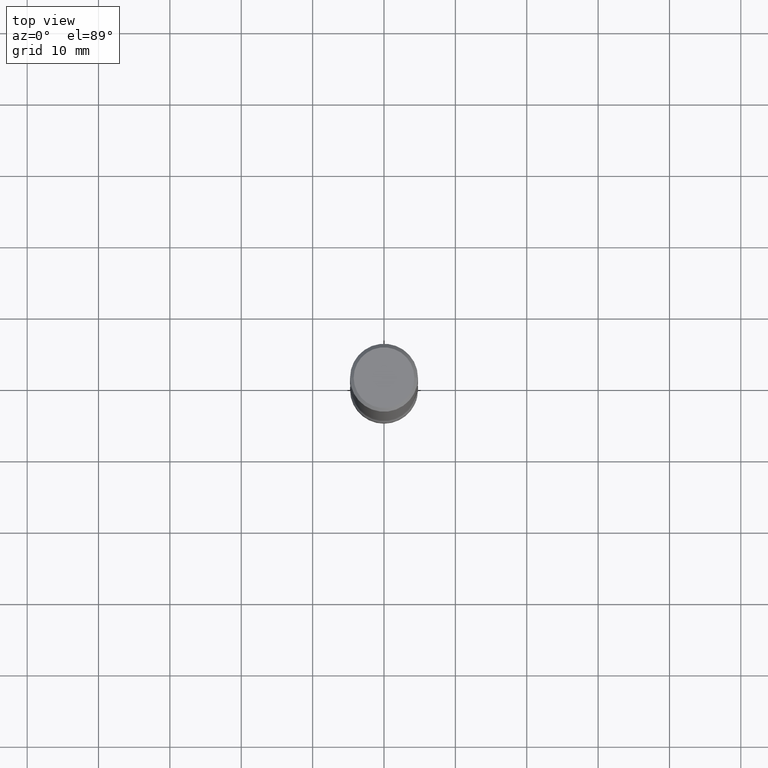
[diagram: clean part render]
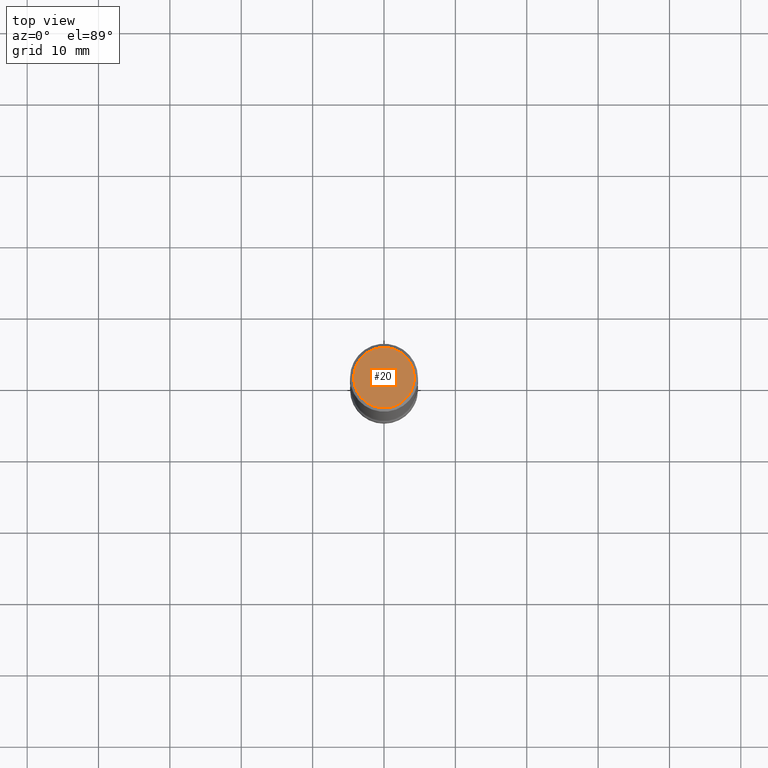
[diagram: same view with one face highlighted and labeled with its STEP entity id]
A machine part, top view. The second image highlights one B-rep face of the part: STEP entity #20.
In plain terms, the highlighted planar face has unit normal (-0, 0, 1).
Its self-contained STEP definition (entity closure, byte-faithful):
#16 = VERTEX_POINT ( 'NONE', #396 ) ;
#20 = ADVANCED_FACE ( 'NONE', ( #140 ), #58, .T. ) ;
#29 = AXIS2_PLACEMENT_3D ( 'NONE', #485, #49, #488 ) ;
#32 = ORIENTED_EDGE ( 'NONE', *, *, #535, .F. ) ;
#49 = DIRECTION ( 'NONE',  ( -2.438088387897960049E-29, 3.491481338843145188E-15, 1.000000000000000000 ) ) ;
#58 = PLANE ( 'NONE',  #29 ) ;
#66 = CARTESIAN_POINT ( 'NONE',  ( 0.1674999999999997047, -1.252653207992876119E-15, 8.469775550109222569E-30 ) ) ;
#79 = CARTESIAN_POINT ( 'NONE',  ( 0.000000000000000000, 0.000000000000000000, 0.000000000000000000 ) ) ;
#134 = VERTEX_POINT ( 'NONE', #66 ) ;
#140 = FACE_OUTER_BOUND ( 'NONE', #221, .T. ) ;
#208 = AXIS2_PLACEMENT_3D ( 'NONE', #364, #489, #541 ) ;
#217 = DIRECTION ( 'NONE',  ( 2.445468806185136597E-29, -3.491481338843145583E-15, -1.000000000000000000 ) ) ;
#221 = EDGE_LOOP ( 'NONE', ( #354, #32 ) ) ;
#239 = EDGE_CURVE ( 'NONE', #16, #134, #448, .T. ) ;
#354 = ORIENTED_EDGE ( 'NONE', *, *, #239, .F. ) ;
#364 = CARTESIAN_POINT ( 'NONE',  ( 0.000000000000000000, 0.000000000000000000, 0.000000000000000000 ) ) ;
#378 = DIRECTION ( 'NONE',  ( -1.000000000000000000, 6.982962677686266711E-15, -4.876176775795936353E-29 ) ) ;
#396 = CARTESIAN_POINT ( 'NONE',  ( -0.1674999999999997047, 1.169646248512447623E-15, -8.167596099458179281E-30 ) ) ;
#414 = AXIS2_PLACEMENT_3D ( 'NONE', #79, #217, #378 ) ;
#448 = CIRCLE ( 'NONE', #414, 0.1674999999999997047 ) ;
#450 = CIRCLE ( 'NONE', #208, 0.1674999999999997047 ) ;
#485 = CARTESIAN_POINT ( 'NONE',  ( 1.169646248512447623E-15, 0.1674999999999997047, -5.826888680111756689E-16 ) ) ;
#488 = DIRECTION ( 'NONE',  ( 1.000000000000000000, -6.982962677686265922E-15, 4.876176775795935793E-29 ) ) ;
#489 = DIRECTION ( 'NONE',  ( 2.445468806185136597E-29, -3.491481338843145583E-15, -1.000000000000000000 ) ) ;
#535 = EDGE_CURVE ( 'NONE', #134, #16, #450, .T. ) ;
#541 = DIRECTION ( 'NONE',  ( -1.000000000000000000, 6.982962677686266711E-15, -4.876176775795936353E-29 ) ) ;